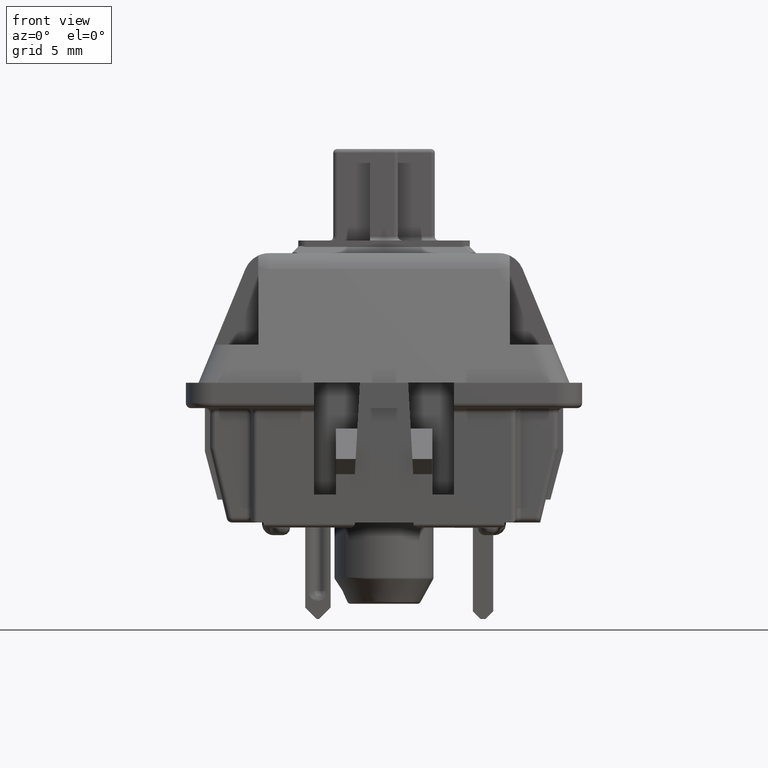
[diagram: clean part render]
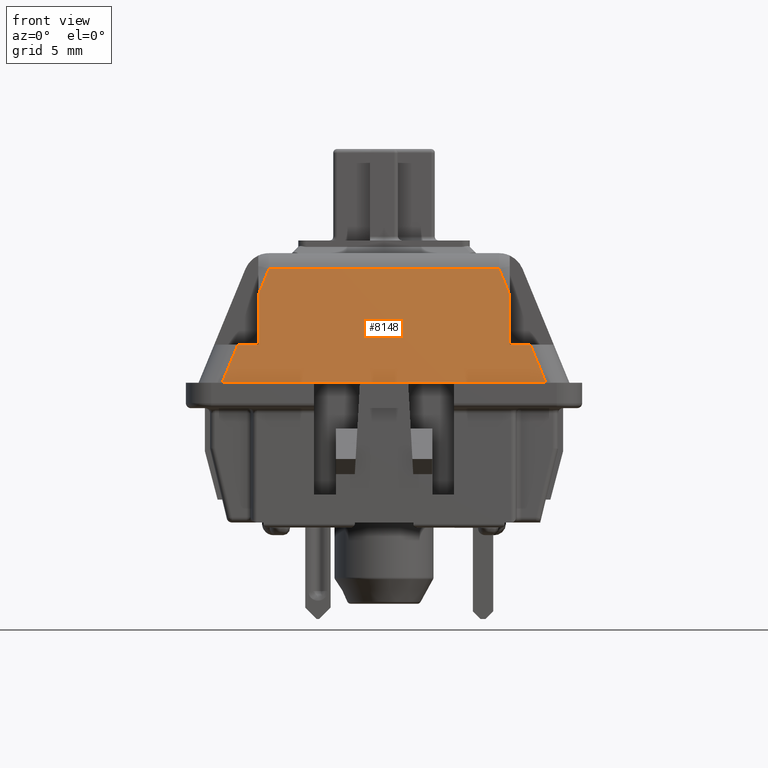
[diagram: same view with one face highlighted and labeled with its STEP entity id]
A machine part, front view. The second image highlights one B-rep face of the part: STEP entity #8148.
In plain terms, the highlighted planar face has unit normal (0, 0.9247, -0.3807).
Its self-contained STEP definition (entity closure, byte-faithful):
#3869=CARTESIAN_POINT('',(-0.03740157480315,-0.28740157480315,8.195543E-017));
#3870=VERTEX_POINT('',#3869);
#3877=CARTESIAN_POINT('',(-0.108267716535433,-0.28740157480315,8.741912E-017));
#3878=VERTEX_POINT('',#3877);
#3879=CARTESIAN_POINT('',(-0.03740157480315,-0.28740157480315,3.496765E-016));
#3880=DIRECTION('',(-1.0,0.0,0.0));
#3881=VECTOR('',#3880,0.070866141732283);
#3882=LINE('',#3879,#3881);
#3883=EDGE_CURVE('',#3870,#3878,#3882,.T.);
#3933=CARTESIAN_POINT('',(0.108267716535433,-0.28740157480315,8.741912E-017));
#3934=VERTEX_POINT('',#3933);
#3941=CARTESIAN_POINT('',(0.03740157480315,-0.28740157480315,8.750450E-017));
#3942=VERTEX_POINT('',#3941);
#3943=CARTESIAN_POINT('',(0.108267716535433,-0.28740157480315,3.496765E-016));
#3944=DIRECTION('',(-1.0,0.0,0.0));
#3945=VECTOR('',#3944,0.070866141732283);
#3946=LINE('',#3943,#3945);
#3947=EDGE_CURVE('',#3934,#3942,#3946,.T.);
#7473=CARTESIAN_POINT('',(0.194881889763779,-0.263084761463641,0.059055118110237));
#7474=VERTEX_POINT('',#7473);
#7481=CARTESIAN_POINT('',(0.226680111917392,-0.263084761463641,0.059055118110237));
#7482=VERTEX_POINT('',#7481);
#7483=CARTESIAN_POINT('',(0.226680111917392,-0.263084761463641,0.059055118110237));
#7484=DIRECTION('',(-1.0,0.0,0.0));
#7485=VECTOR('',#7484,0.031798222153613);
#7486=LINE('',#7483,#7485);
#7487=EDGE_CURVE('',#7482,#7474,#7486,.T.);
#7539=CARTESIAN_POINT('',(-0.226680111917392,-0.263084761463641,0.059055118110237));
#7540=VERTEX_POINT('',#7539);
#7548=CARTESIAN_POINT('',(-0.194881889763779,-0.263084761463641,0.059055118110237));
#7549=VERTEX_POINT('',#7548);
#7550=CARTESIAN_POINT('',(-0.194881889763779,-0.263084761463641,0.059055118110237));
#7551=DIRECTION('',(-1.0,0.0,0.0));
#7552=VECTOR('',#7551,0.031798222153613);
#7553=LINE('',#7550,#7552);
#7554=EDGE_CURVE('',#7549,#7540,#7553,.T.);
#7718=CARTESIAN_POINT('',(-0.194881889763779,-0.231286539310028,0.136279371911867));
#7719=VERTEX_POINT('',#7718);
#7720=CARTESIAN_POINT('',(-0.194881889763779,-0.231286539310028,0.136279371911867));
#7721=DIRECTION('',(0.0,-0.380749805254294,-0.924678098474716));
#7722=VECTOR('',#7721,0.083514743053841);
#7723=LINE('',#7720,#7722);
#7724=EDGE_CURVE('',#7719,#7549,#7723,.T.);
#7834=CARTESIAN_POINT('',(0.194881889763779,-0.231286539310028,0.136279371911867));
#7835=VERTEX_POINT('',#7834);
#7843=CARTESIAN_POINT('',(0.194881889763779,-0.263084761463641,0.059055118110237));
#7844=DIRECTION('',(0.0,0.380749805254295,0.924678098474716));
#7845=VECTOR('',#7844,0.083514743053841);
#7846=LINE('',#7843,#7845);
#7847=EDGE_CURVE('',#7474,#7835,#7846,.T.);
#8017=CARTESIAN_POINT('',(-0.178358554166628,-0.214763203712876,0.176407472647807));
#8018=VERTEX_POINT('',#8017);
#8059=CARTESIAN_POINT('',(-0.250996925256901,-0.28740157480315,1.135057E-016));
#8060=VERTEX_POINT('',#8059);
#8068=CARTESIAN_POINT('',(-0.250996925256901,-0.28740157480315,3.405171E-016));
#8069=DIRECTION('',(0.355829997442744,0.355829997442744,0.864158565218093));
#8070=VECTOR('',#8069,0.068338289391754);
#8071=LINE('',#8068,#8070);
#8072=EDGE_CURVE('',#8060,#7540,#8071,.T.);
#8083=CARTESIAN_POINT('',(-0.194881889763779,-0.231286539310028,0.136279371911867));
#8084=DIRECTION('',(0.355829997442745,0.355829997442744,0.864158565218093));
#8085=VECTOR('',#8084,0.046436038883457);
#8086=LINE('',#8083,#8085);
#8087=EDGE_CURVE('',#7719,#8018,#8086,.T.);
#8093=CARTESIAN_POINT('',(-0.276096617782591,-0.291033493357664,-0.00882037363239));
#8094=DIRECTION('',(0.0,0.924678098474716,-0.380749805254295));
#8095=DIRECTION('',(0.0,0.380749805254295,0.924678098474716));
#8096=AXIS2_PLACEMENT_3D('',#8093,#8094,#8095);
#8097=PLANE('',#8096);
#8098=ORIENTED_EDGE('',*,*,#7724,.T.);
#8099=ORIENTED_EDGE('',*,*,#7554,.T.);
#8100=ORIENTED_EDGE('',*,*,#8072,.F.);
#8101=CARTESIAN_POINT('',(-0.108267716535433,-0.28740157480315,0.0));
#8102=DIRECTION('',(-1.0,0.0,0.0));
#8103=VECTOR('',#8102,0.142729208721468);
#8104=LINE('',#8101,#8103);
#8105=EDGE_CURVE('',#3878,#8060,#8104,.T.);
#8106=ORIENTED_EDGE('',*,*,#8105,.F.);
#8107=ORIENTED_EDGE('',*,*,#3883,.F.);
#8108=CARTESIAN_POINT('',(0.03740157480315,-0.28740157480315,0.0));
#8109=DIRECTION('',(-1.0,0.0,0.0));
#8110=VECTOR('',#8109,0.0748031496063);
#8111=LINE('',#8108,#8110);
#8112=EDGE_CURVE('',#3942,#3870,#8111,.T.);
#8113=ORIENTED_EDGE('',*,*,#8112,.F.);
#8114=ORIENTED_EDGE('',*,*,#3947,.F.);
#8115=CARTESIAN_POINT('',(0.250996925256901,-0.28740157480315,1.595946E-016));
#8116=VERTEX_POINT('',#8115);
#8117=CARTESIAN_POINT('',(0.250996925256901,-0.28740157480315,0.0));
#8118=DIRECTION('',(-1.0,0.0,0.0));
#8119=VECTOR('',#8118,0.142729208721468);
#8120=LINE('',#8117,#8119);
#8121=EDGE_CURVE('',#8116,#3934,#8120,.T.);
#8122=ORIENTED_EDGE('',*,*,#8121,.F.);
#8123=CARTESIAN_POINT('',(0.226680111917392,-0.263084761463641,0.059055118110237));
#8124=DIRECTION('',(0.355829997442745,-0.355829997442744,-0.864158565218093));
#8125=VECTOR('',#8124,0.068338289391754);
#8126=LINE('',#8123,#8125);
#8127=EDGE_CURVE('',#7482,#8116,#8126,.T.);
#8128=ORIENTED_EDGE('',*,*,#8127,.F.);
#8129=ORIENTED_EDGE('',*,*,#7487,.T.);
#8130=ORIENTED_EDGE('',*,*,#7847,.T.);
#8131=CARTESIAN_POINT('',(0.178358554166627,-0.214763203712876,0.176407472647807));
#8132=VERTEX_POINT('',#8131);
#8133=CARTESIAN_POINT('',(0.178358554166627,-0.214763203712876,0.176407472647807));
#8134=DIRECTION('',(0.355829997442744,-0.355829997442745,-0.864158565218093));
#8135=VECTOR('',#8134,0.046436038883458);
#8136=LINE('',#8133,#8135);
#8137=EDGE_CURVE('',#8132,#7835,#8136,.T.);
#8138=ORIENTED_EDGE('',*,*,#8137,.F.);
#8139=CARTESIAN_POINT('',(-0.178358554166628,-0.214763203712876,0.176407472647807));
#8140=DIRECTION('',(1.0,0.0,0.0));
#8141=VECTOR('',#8140,0.356717108333255);
#8142=LINE('',#8139,#8141);
#8143=EDGE_CURVE('',#8018,#8132,#8142,.T.);
#8144=ORIENTED_EDGE('',*,*,#8143,.F.);
#8145=ORIENTED_EDGE('',*,*,#8087,.F.);
#8146=EDGE_LOOP('',(#8098,#8099,#8100,#8106,#8107,#8113,#8114,#8122,#8128,#8129,#8130,#8138,#8144,#8145));
#8147=FACE_OUTER_BOUND('',#8146,.T.);
#8148=ADVANCED_FACE('',(#8147),#8097,.F.);